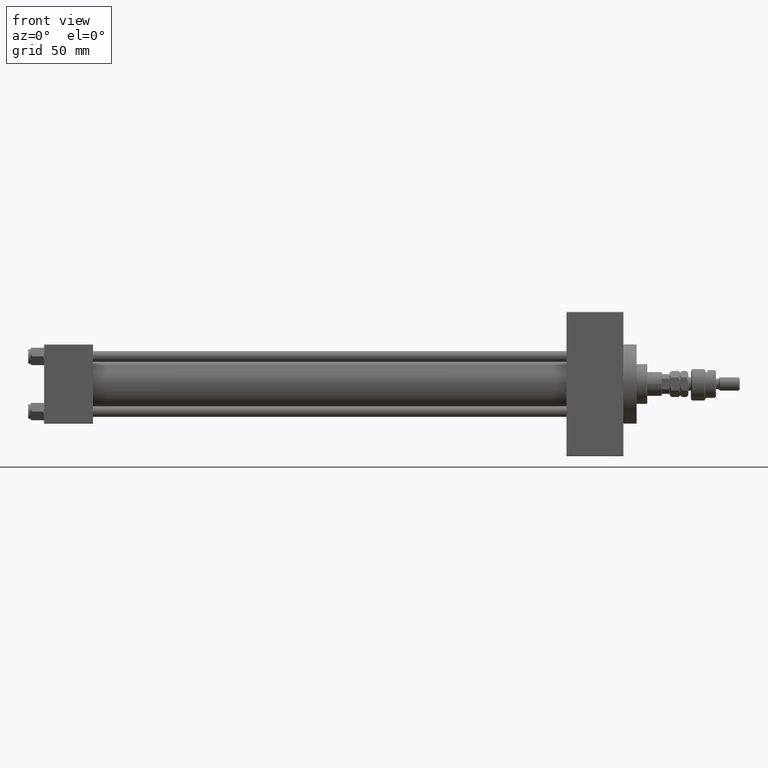
[diagram: clean part render]
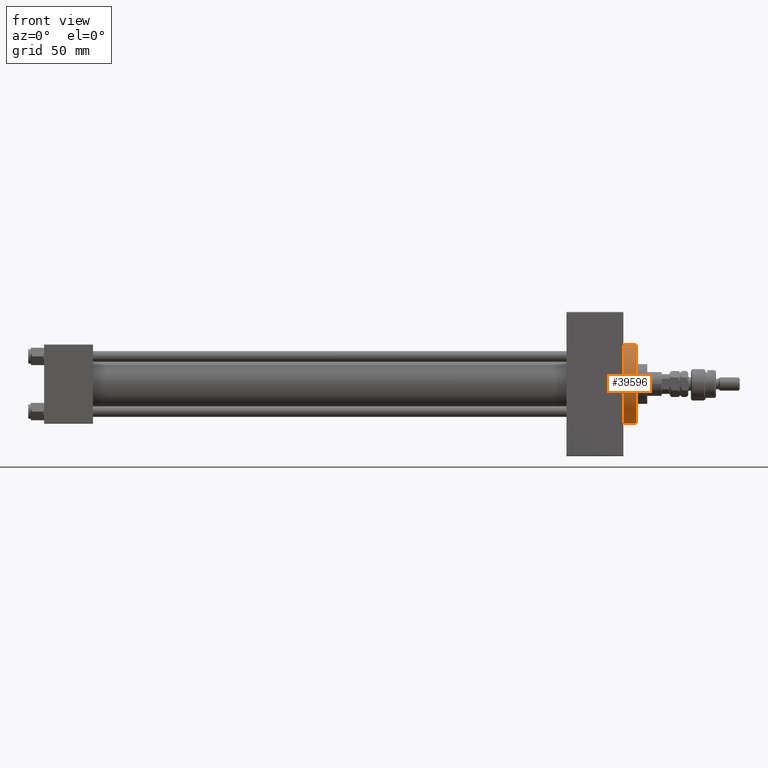
[diagram: same view with one face highlighted and labeled with its STEP entity id]
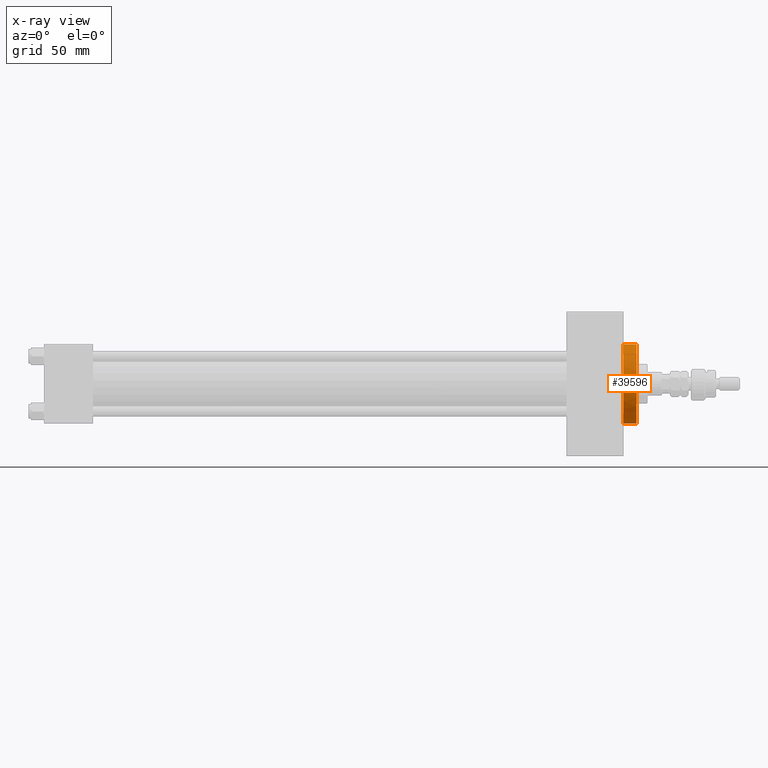
[diagram: x-ray of the same camera — body ghosted, the highlighted face saturated]
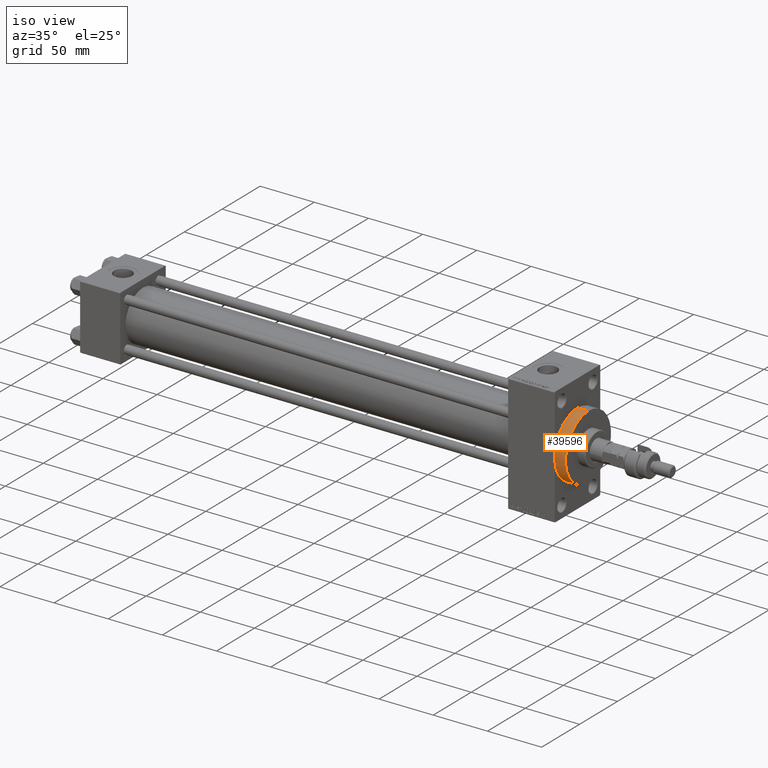
[diagram: same view with one face highlighted and labeled with its STEP entity id]
A machine part, front view. The second image highlights one B-rep face of the part: STEP entity #39596.
The next image is the same camera in x-ray: the body ghosted, the highlighted face saturated — about 0% of this face is hidden behind the body in this view.
A second angle (iso view) of the same face is appended — the face is thin or edge-on in the first view.
In plain terms, the highlighted cylindrical surface (partial cylindrical patch) has radius 30 mm, axis along (-1, -0, -0).
Its self-contained STEP definition (entity closure, byte-faithful):
#33 = CARTESIAN_POINT ( 'NONE',  ( 437.9999999999999432, 0.000000000000000000, 0.000000000000000000 ) ) ;
#839 = VERTEX_POINT ( 'NONE', #38764 ) ;
#1940 = EDGE_CURVE ( 'NONE', #15743, #4307, #34647, .T. ) ;
#4307 = VERTEX_POINT ( 'NONE', #43071 ) ;
#4374 = AXIS2_PLACEMENT_3D ( 'NONE', #33, #7412, #35609 ) ;
#4670 = VERTEX_POINT ( 'NONE', #19570 ) ;
#4738 = ORIENTED_EDGE ( 'NONE', *, *, #32327, .F. ) ;
#5217 = DIRECTION ( 'NONE',  ( 1.000000000000000000, 0.000000000000000000, 0.000000000000000000 ) ) ;
#5840 = CYLINDRICAL_SURFACE ( 'NONE', #7010, 30.00000000000000000 ) ;
#6095 = CARTESIAN_POINT ( 'NONE',  ( 447.9999999999999432, 0.000000000000000000, 0.000000000000000000 ) ) ;
#7010 = AXIS2_PLACEMENT_3D ( 'NONE', #6095, #26383, #22176 ) ;
#7412 = DIRECTION ( 'NONE',  ( 1.000000000000000000, 0.000000000000000000, 0.000000000000000000 ) ) ;
#10930 = EDGE_CURVE ( 'NONE', #4307, #4670, #13049, .T. ) ;
#11384 = AXIS2_PLACEMENT_3D ( 'NONE', #19503, #5217, #32881 ) ;
#13049 = CIRCLE ( 'NONE', #11384, 30.00000000000000000 ) ;
#13702 = ORIENTED_EDGE ( 'NONE', *, *, #10930, .T. ) ;
#13875 = DIRECTION ( 'NONE',  ( 0.000000000000000000, 0.000000000000000000, -1.000000000000000000 ) ) ;
#15743 = VERTEX_POINT ( 'NONE', #47038 ) ;
#16174 = CARTESIAN_POINT ( 'NONE',  ( 447.9999999999999432, 0.000000000000000000, 30.00000000000000000 ) ) ;
#16569 = VECTOR ( 'NONE', #20393, 1000.000000000000000 ) ;
#17829 = EDGE_LOOP ( 'NONE', ( #51066, #4738, #32431, #19148, #13702 ) ) ;
#19148 = ORIENTED_EDGE ( 'NONE', *, *, #1940, .T. ) ;
#19503 = CARTESIAN_POINT ( 'NONE',  ( 437.9999999999999432, 0.000000000000000000, 0.000000000000000000 ) ) ;
#19570 = CARTESIAN_POINT ( 'NONE',  ( 437.9999999999999432, 3.673940397442059178E-15, -30.00000000000000000 ) ) ;
#20393 = DIRECTION ( 'NONE',  ( -1.000000000000000000, -0.000000000000000000, -0.000000000000000000 ) ) ;
#22176 = DIRECTION ( 'NONE',  ( 0.000000000000000000, 0.000000000000000000, 1.000000000000000000 ) ) ;
#22825 = DIRECTION ( 'NONE',  ( -1.000000000000000000, -0.000000000000000000, -0.000000000000000000 ) ) ;
#23610 = CARTESIAN_POINT ( 'NONE',  ( 447.9999999999999432, 3.673940397442059178E-15, -30.00000000000000000 ) ) ;
#24178 = EDGE_CURVE ( 'NONE', #839, #4670, #35459, .T. ) ;
#25521 = CIRCLE ( 'NONE', #45730, 30.00000000000000000 ) ;
#26383 = DIRECTION ( 'NONE',  ( -1.000000000000000000, -0.000000000000000000, -0.000000000000000000 ) ) ;
#27035 = DIRECTION ( 'NONE',  ( 1.000000000000000000, 0.000000000000000000, 0.000000000000000000 ) ) ;
#30082 = FACE_OUTER_BOUND ( 'NONE', #17829, .T. ) ;
#32327 = EDGE_CURVE ( 'NONE', #37765, #839, #25521, .T. ) ;
#32431 = ORIENTED_EDGE ( 'NONE', *, *, #50359, .T. ) ;
#32881 = DIRECTION ( 'NONE',  ( 0.000000000000000000, 0.000000000000000000, -1.000000000000000000 ) ) ;
#34647 = CIRCLE ( 'NONE', #4374, 30.00000000000000000 ) ;
#35459 = LINE ( 'NONE', #23610, #38663 ) ;
#35609 = DIRECTION ( 'NONE',  ( 0.000000000000000000, 0.000000000000000000, -1.000000000000000000 ) ) ;
#37765 = VERTEX_POINT ( 'NONE', #51414 ) ;
#38630 = CARTESIAN_POINT ( 'NONE',  ( 447.9999999999999432, 0.000000000000000000, 0.000000000000000000 ) ) ;
#38663 = VECTOR ( 'NONE', #22825, 1000.000000000000000 ) ;
#38764 = CARTESIAN_POINT ( 'NONE',  ( 447.9999999999999432, 3.673940397442059178E-15, -30.00000000000000000 ) ) ;
#39596 = ADVANCED_FACE ( 'NONE', ( #30082 ), #5840, .T. ) ;
#43071 = CARTESIAN_POINT ( 'NONE',  ( 437.9999999999999432, -30.00000000000000000, 0.000000000000000000 ) ) ;
#45730 = AXIS2_PLACEMENT_3D ( 'NONE', #38630, #27035, #13875 ) ;
#47038 = CARTESIAN_POINT ( 'NONE',  ( 437.9999999999999432, 0.000000000000000000, 30.00000000000000000 ) ) ;
#48326 = LINE ( 'NONE', #16174, #16569 ) ;
#50359 = EDGE_CURVE ( 'NONE', #37765, #15743, #48326, .T. ) ;
#51066 = ORIENTED_EDGE ( 'NONE', *, *, #24178, .F. ) ;
#51414 = CARTESIAN_POINT ( 'NONE',  ( 447.9999999999999432, 0.000000000000000000, 30.00000000000000000 ) ) ;